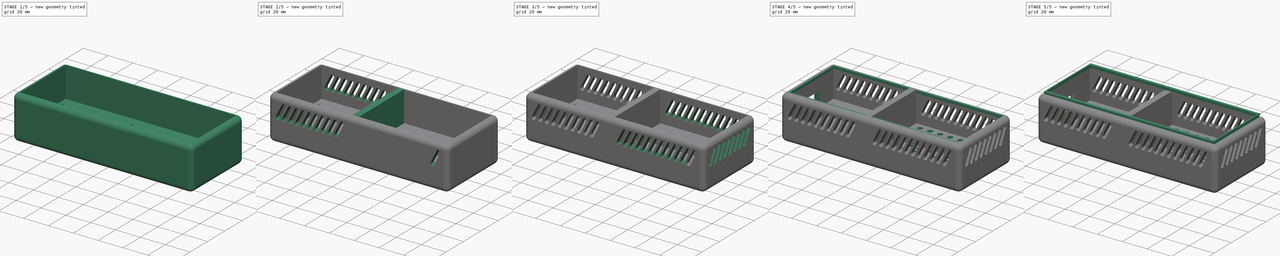
[diagram: build sequence overview — one tinted view per stage of 5, left to right]
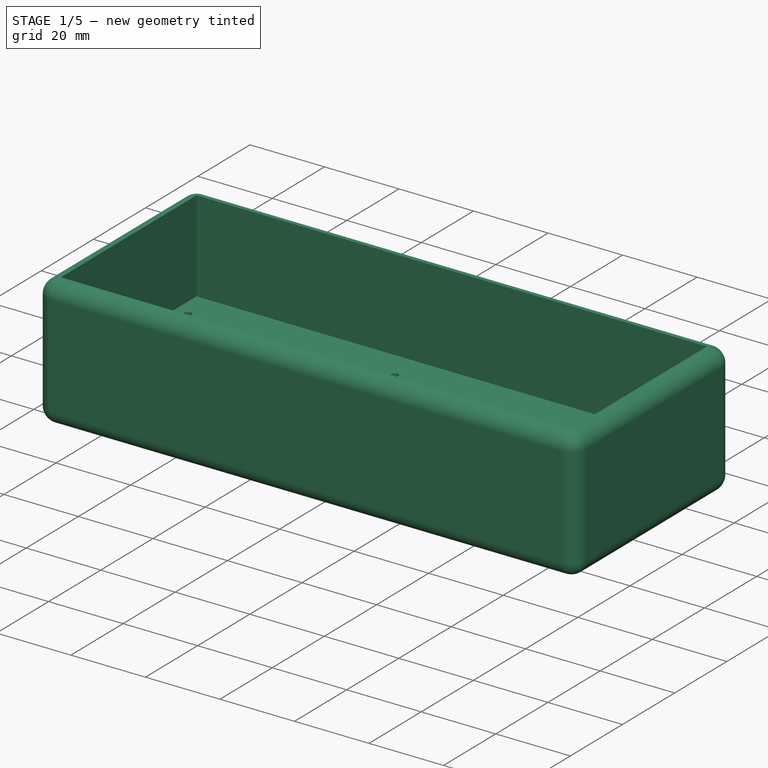
[diagram: stage 1 of 5 — iso view after this stage's code; geometry added in this stage tinted green]
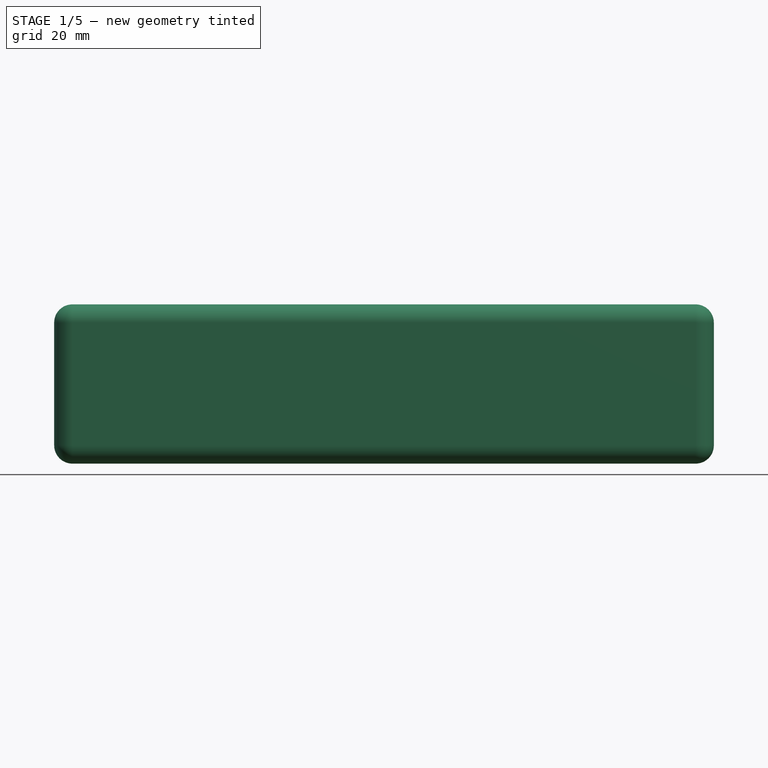
[diagram: stage 1 of 5 — front view after this stage's code; geometry added in this stage tinted green]
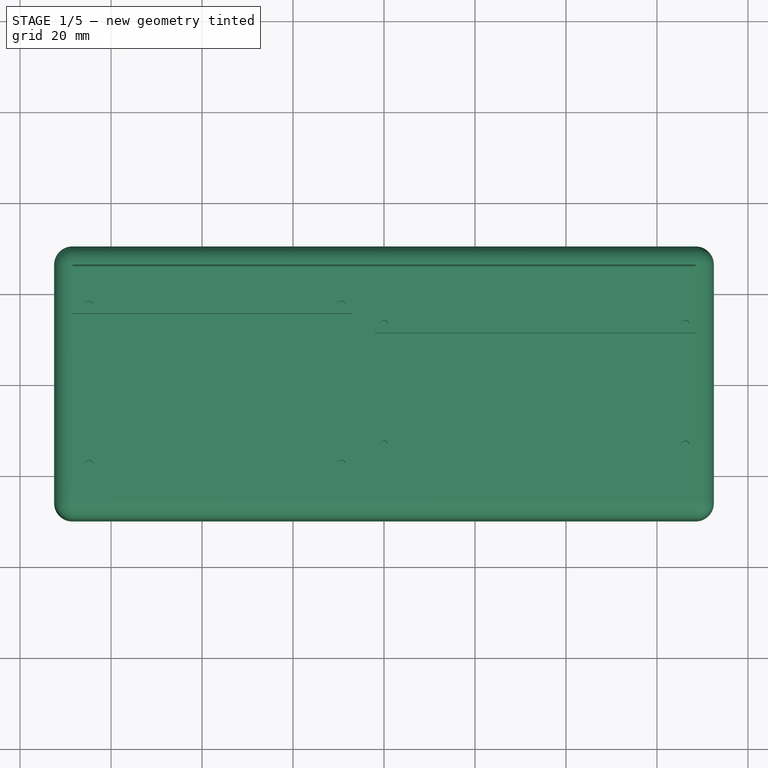
[diagram: stage 1 of 5 — top view after this stage's code; geometry added in this stage tinted green]
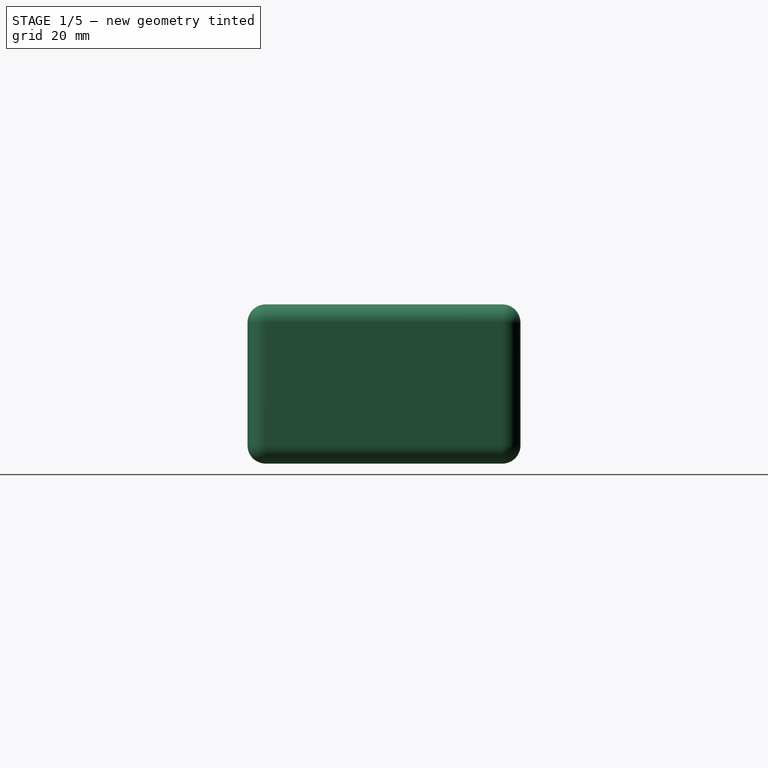
[diagram: stage 1 of 5 — right view after this stage's code; geometry added in this stage tinted green]
FCSTD DOCUMENT  (FreeCAD 0.21R33771 (Git))
Label: ESP_CASE_CHAMBERS
License: All rights reserved
LicenseURL: https://en.wikipedia.org/wiki/All_rights_reserved
objects: Sketcher::SketchObject×18, PartDesign::Pad×9, PartDesign::Pocket×8, PartDesign::LinearPattern×4, PartDesign::Fillet×1, PartDesign::Body×1
note: 59 computed .brp shape members not serialized (recipe doc carries the construction recipe); baked Part::Feature solids carry a one-line shape summary decoded from their .brp

FEATURE [Sketcher::SketchObject] Sketch
  FullyConstrained = true
  MapMode = 5
  Support = -> [XY_Plane]
  sketch-geometry (7):
    g0: LineSegment StartX=-72.5 StartY=30 StartZ=0 EndX=72.5 EndY=30 EndZ=0
    g1: LineSegment StartX=72.5 StartY=30 StartZ=0 EndX=72.5 EndY=-30 EndZ=0
    g2: LineSegment StartX=72.5 StartY=-30 StartZ=0 EndX=-72.5 EndY=-30 EndZ=0
    g3: LineSegment StartX=-72.5 StartY=-30 StartZ=0 EndX=-72.5 EndY=30 EndZ=0
    g4: LineSegment StartX=0 StartY=0 StartZ=0 EndX=72.5 EndY=30 EndZ=0
    g5: LineSegment StartX=0 StartY=0 StartZ=0 EndX=-72.5 EndY=-30 EndZ=0
    g6: LineSegment StartX=0 StartY=0 StartZ=0 EndX=-72.5 EndY=30 EndZ=0
  constraints (18):
    c: Coincident(g0,g1)
    c: Coincident(g1,g2)
    c: Coincident(g2,g3)
    c: Coincident(g3,g0)
    c: Horizontal(g0)
    c: Horizontal(g2)
    c: Vertical(g1)
    c: Vertical(g3)
    c: Distance(g0) = 145
    c: Distance(g1) = 60
    c: Coincident(g4,g-1)
    c: Coincident(g4,g0)
    c: Coincident(g5,g4)
    c: Coincident(g5,g2)
    c: Coincident(g6,g4)
    c: Coincident(g6,g0)
    c: Equal(g6,g5)
    c: Equal(g4,g6)
FEATURE [PartDesign::Pad] Pad
  Direction = (0,0,1)
  Length = 35
  Length2 = 10
  Profile = -> Sketch
  ReferenceAxis = -> Sketch [N_Axis]
  Type = 0
FEATURE [PartDesign::Fillet] Fillet
  Base = -> Pad [Edge1,Edge2,Edge3,Edge4,Edge5,Edge6,Edge7,Edge8,Edge9,Edge10,Edge11,Edge12]
  BaseFeature = -> Pad
  Radius = 4
  SupportTransform = false
  UseAllEdges = true
FEATURE [Sketcher::SketchObject] Sketch001
  ExternalGeometry = -> [Fillet]
  FullyConstrained = true
  MapMode = 5
  Placement = pos=(0,0,35) rot=(0,0,1;0rad)
  Support = -> [Fillet]
  sketch-geometry (4):
    g0: LineSegment StartX=-68.5 StartY=26 StartZ=0 EndX=68.5 EndY=26 EndZ=0
    g1: LineSegment StartX=68.5 StartY=26 StartZ=0 EndX=68.5 EndY=-26 EndZ=0
    g2: LineSegment StartX=68.5 StartY=-26 StartZ=0 EndX=-68.5 EndY=-26 EndZ=0
    g3: LineSegment StartX=-68.5 StartY=-26 StartZ=0 EndX=-68.5 EndY=26 EndZ=0
  constraints (10):
    c: Coincident(g0,g1)
    c: Coincident(g1,g2)
    c: Coincident(g2,g3)
    c: Coincident(g3,g0)
    c: Horizontal(g0)
    c: Horizontal(g2)
    c: Vertical(g1)
    c: Vertical(g3)
    c: Coincident(g0,g-4)
    c: Coincident(g1,g-6)
FEATURE [PartDesign::Pocket] Pocket
  BaseFeature = -> Fillet
  Direction = (0,0,-1)
  Length = 24.5
  Length2 = 5
  Profile = -> Sketch001
  ReferenceAxis = -> Sketch001 [N_Axis]
  Type = 0
FEATURE [Sketcher::SketchObject] Sketch002
  ExternalGeometry = -> [Pocket]
  FullyConstrained = true
  MapMode = 5
  Placement = pos=(0,0,10.5) rot=(0,0,1;0rad)
  Support = -> [Pocket]
  sketch-geometry (36):
    g0: LineSegment StartX=-68.5 StartY=15.65 StartZ=0 EndX=-7 EndY=15.65 EndZ=0
    g1: LineSegment StartX=-7 StartY=-15.65 StartZ=0 EndX=-68.5 EndY=-15.65 EndZ=0
    g2: LineSegment StartX=-68.5 StartY=-15.65 StartZ=0 EndX=-68.5 EndY=15.65 EndZ=0
    g3: LineSegment StartX=-68.5 StartY=-15.65 StartZ=0 EndX=0 EndY=0 EndZ=0
    g4: LineSegment StartX=-68.5 StartY=15.65 StartZ=0 EndX=0 EndY=0 EndZ=0
    g5: LineSegment StartX=0 StartY=0 StartZ=0 EndX=0 EndY=17.4 EndZ=0
    g6: LineSegment StartX=0 StartY=0 StartZ=0 EndX=0 EndY=-17.4 EndZ=0
    g7: LineSegment StartX=-64.85 StartY=17.5 StartZ=0 EndX=-9.35 EndY=17.5 EndZ=0
    g8: Circle CenterX=-9.35 CenterY=17.5 CenterZ=0 NormalX=0 NormalY=0 NormalZ=1 AngleXU=0 Radius=0.94
    g9: Circle CenterX=-64.85 CenterY=17.5 CenterZ=0 NormalX=0 NormalY=0 NormalZ=1 AngleXU=0 Radius=0.94
    g10: LineSegment StartX=-64.85 StartY=17.5 StartZ=0 EndX=-68.5 EndY=17.5 EndZ=0
    g11: LineSegment StartX=-64.85 StartY=17.5 StartZ=0 EndX=-64.85 EndY=-17.5 EndZ=0
    g12: LineSegment StartX=-64.85 StartY=-17.5 StartZ=0 EndX=-9.35 EndY=-17.5 EndZ=0
    g13: Circle CenterX=-9.35 CenterY=-17.5 CenterZ=0 NormalX=0 NormalY=0 NormalZ=1 AngleXU=0 Radius=0.94
    g14: Circle CenterX=-64.85 CenterY=-17.5 CenterZ=0 NormalX=0 NormalY=0 NormalZ=1 AngleXU=0 Radius=0.94
    g15: LineSegment StartX=-64.85 StartY=17.5 StartZ=0 EndX=0 EndY=0 EndZ=0
    g16: LineSegment StartX=0 StartY=0 StartZ=0 EndX=-64.85 EndY=-17.5 EndZ=0
    g17: LineSegment StartX=66.2 StartY=13.25 StartZ=0 EndX=66.2 EndY=-13.25 EndZ=0
    g18: LineSegment StartX=0 StartY=0 StartZ=0 EndX=66.2 EndY=13.25 EndZ=0
    g19: LineSegment StartX=66.2 StartY=-13.25 StartZ=0 EndX=0 EndY=0 EndZ=0
    g20: LineSegment StartX=66.2 StartY=13.25 StartZ=0 EndX=0 EndY=13.25 EndZ=0
    g21: LineSegment StartX=68.5 StartY=11.4 StartZ=0 EndX=-2 EndY=11.4 EndZ=0
    g22: LineSegment StartX=-2 StartY=11.4 StartZ=0 EndX=-2 EndY=-11.4 EndZ=0
    g23: LineSegment StartX=-2 StartY=-11.4 StartZ=0 EndX=68.5 EndY=-11.4 EndZ=0
    g24: LineSegment StartX=68.5 StartY=-11.4 StartZ=0 EndX=68.5 EndY=11.4 EndZ=0
    g25: LineSegment StartX=68.5 StartY=11.4 StartZ=0 EndX=0 EndY=0 EndZ=0
    g26: LineSegment StartX=0 StartY=0 StartZ=0 EndX=68.5 EndY=-11.4 EndZ=0
    g27: Circle CenterX=0 CenterY=13.25 CenterZ=0 NormalX=0 NormalY=0 NormalZ=1 AngleXU=0 Radius=0.94
    g28: Circle CenterX=66.2 CenterY=13.25 CenterZ=0 NormalX=0 NormalY=0 NormalZ=1 AngleXU=0 Radius=0.94
    g29: Circle CenterX=66.2 CenterY=-13.25 CenterZ=0 NormalX=0 NormalY=0 NormalZ=1 AngleXU=0 Radius=0.94
    g30: LineSegment StartX=66.2 StartY=-13.25 StartZ=0 EndX=0 EndY=-13.25 EndZ=0
    g31: Circle CenterX=0 CenterY=-13.25 CenterZ=0 NormalX=0 NormalY=0 NormalZ=1 AngleXU=0 Radius=0.94
    g32: LineSegment StartX=-2 StartY=11.4 StartZ=0 EndX=-2 EndY=13.25 EndZ=0
    g33: LineSegment StartX=-2 StartY=13.25 StartZ=0 EndX=0 EndY=13.25 EndZ=0
    g34: LineSegment StartX=-7 StartY=-7.75442 StartZ=0 EndX=-2 EndY=-7.75442 EndZ=0
    g35: LineSegment StartX=-7 StartY=15.65 StartZ=0 EndX=-7 EndY=-15.65 EndZ=0
  constraints (94):
    c: Coincident(g1,g2)
    c: Coincident(g2,g0)
    c: Horizontal(g0)
    c: Horizontal(g1)
    c: Vertical(g2)
    c: Distance(g0) = 61.5
    c: Distance(g2) = 31.3
    c: Coincident(g3,g1)
    c: Coincident(g3,g-1)
    c: Coincident(g4,g0)
    c: Coincident(g4,g3)
    c: Equal(g4,g3)
    c: PointOnObject(g0,g-4)
    c: Coincident(g5,g3)
    c: PointOnObject(g5,g-2)
    c: Coincident(g6,g3)
    c: PointOnObject(g6,g-2)
    c: Equal(g5,g6)
    c: Distance(g5) = 17.4
    c: Horizontal(g7)
    c: Distance(g7) = 55.5
    c: Diameter(g8) = 1.88
    c: Equal(g9,g8)
    c: Coincident(g8,g7)
    c: Coincident(g7,g9)
    c: Coincident(g10,g9)
    c: PointOnObject(g10,g-4)
    c: Horizontal(g10)
    c: Distance(g10) = 3.65
    c: Coincident(g11,g9)
    c: Vertical(g11)
    c: Coincident(g12,g11)
    c: Horizontal(g12)
    c: Equal(g9,g14)
    c: Equal(g8,g13)
    c: Coincident(g13,g12)
    c: Coincident(g14,g11)
    c: Equal(g12,g7)
    c: Distance(g11) = 35
    c: Coincident(g15,g9)
    c: Coincident(g15,g3)
    c: Coincident(g16,g3)
    c: Coincident(g16,g14)
    c: Equal(g15,g16)
    c: Vertical(g17)
    c: Distance(g17) = 26.5
    c: Coincident(g18,g3)
    c: Coincident(g18,g17)
    c: Coincident(g19,g17)
    c: Coincident(g19,g3)
    c: Equal(g18,g19)
    c: Coincident(g20,g17)
    c: Horizontal(g20)
    c: Coincident(g21,g22)
    c: Coincident(g22,g23)
    c: Coincident(g23,g24)
    c: Coincident(g24,g21)
    c: Horizontal(g21)
    c: Horizontal(g23)
    c: Vertical(g22)
    c: Vertical(g24)
    c: PointOnObject(g21,g-6)
    c: Coincident(g25,g21)
    c: Coincident(g25,g3)
    c: Coincident(g26,g3)
    c: Coincident(g26,g23)
    c: Equal(g25,g26)
    c: Distance(g22) = 22.8
    c: Coincident(g27,g20)
    c: Coincident(g28,g17)
    c: Coincident(g29,g17)
    c: Coincident(g30,g29)
    c: Horizontal(g30)
    c: Coincident(g31,g30)
    c: Equal(g20,g30)
    c: Equal(g8,g27)
    c: Equal(g8,g28)
    c: Equal(g8,g29)
    c: Equal(g8,g31)
    c: Distance(g20) = 66.2
    c: Coincident(g32,g21)
    c: Vertical(g32)
    c: Coincident(g33,g32)
    c: Coincident(g33,g27)
    c: Horizontal(g33)
    c: Distance(g33) = 2
    c: PointOnObject(g34,g22)
    c: Horizontal(g34)
    c: Distance(g34) = 5
    c: Coincident(g35,g0)
    c: Coincident(g35,g1)
    c: Vertical(g35)
    c: PointOnObject(g34,g35)
    c: Block(g34)
FEATURE [PartDesign::Pocket] Pocket001
  BaseFeature = -> Pocket
  Direction = (0,0,-1)
  Length = 8
  Length2 = 5
  Profile = -> Sketch002
  ReferenceAxis = -> Sketch002 [N_Axis]
  Type = 0
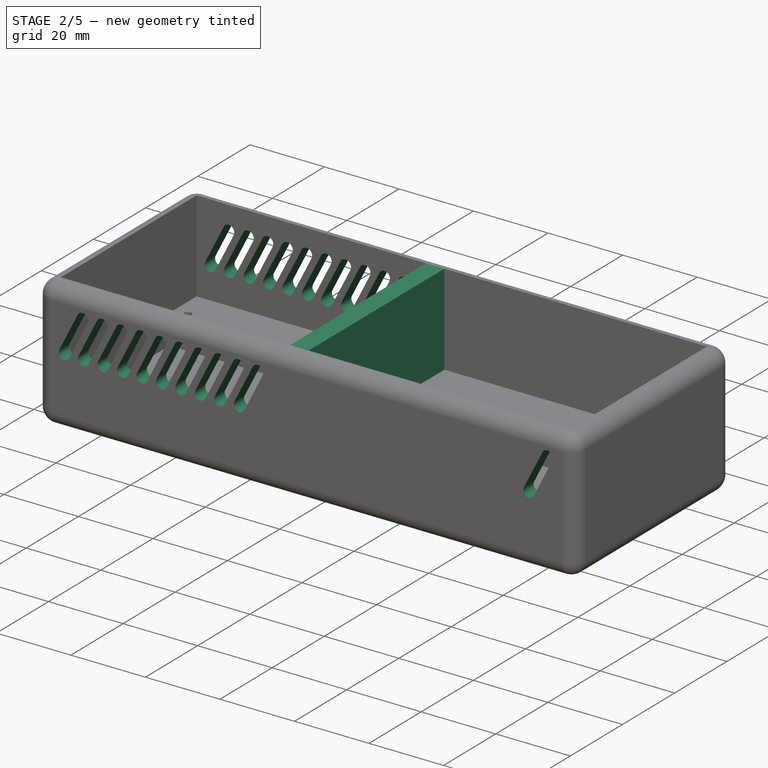
[diagram: stage 2 of 5 — iso view after this stage's code; geometry added in this stage tinted green]
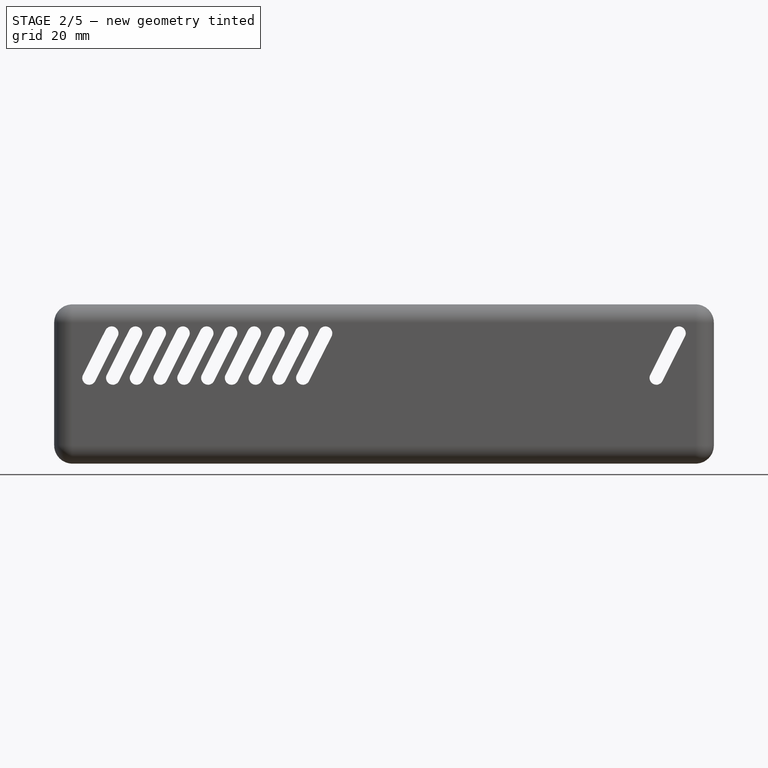
[diagram: stage 2 of 5 — front view after this stage's code; geometry added in this stage tinted green]
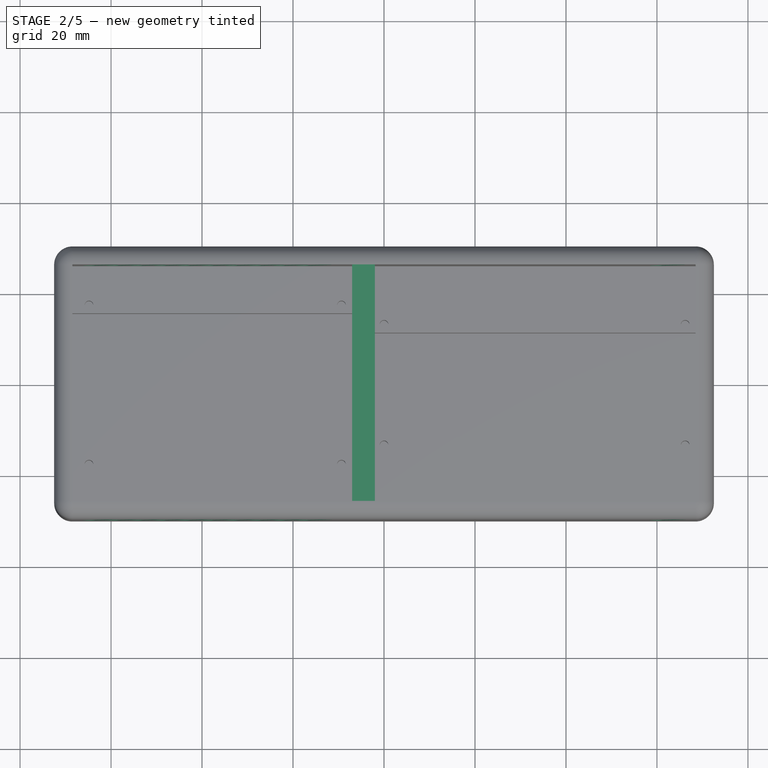
[diagram: stage 2 of 5 — top view after this stage's code; geometry added in this stage tinted green]
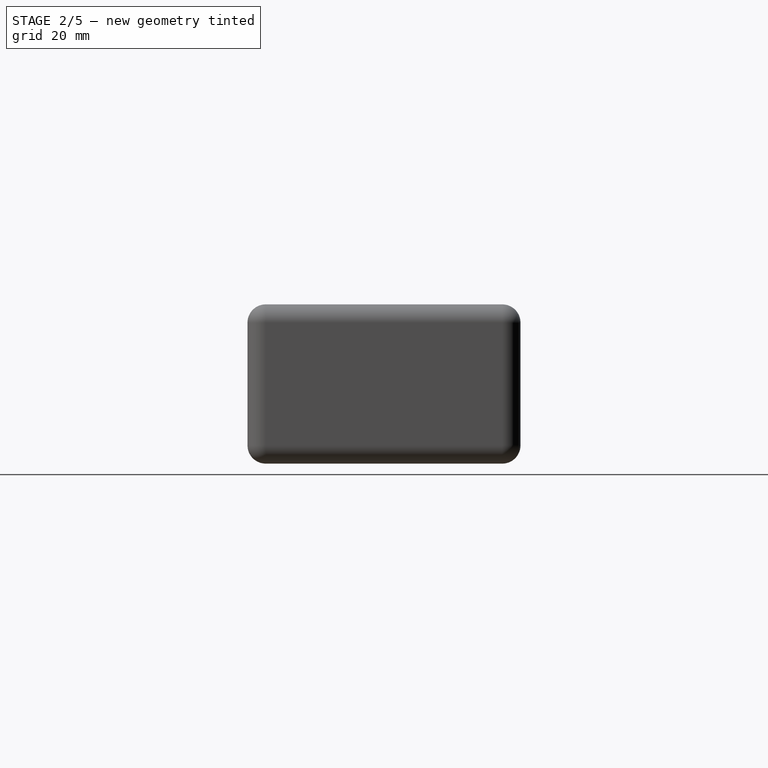
[diagram: stage 2 of 5 — right view after this stage's code; geometry added in this stage tinted green]
FEATURE [Sketcher::SketchObject] Sketch003
  ExternalGeometry = -> [Pocket001]
  FullyConstrained = true
  MapMode = 5
  Placement = pos=(0,0,10.5) rot=(0,0,1;0rad)
  Support = -> [Pocket001]
  sketch-geometry (6):
    g0: LineSegment StartX=-7 StartY=15.65 StartZ=0 EndX=-7 EndY=26 EndZ=0
    g1: LineSegment StartX=-7 StartY=15.65 StartZ=0 EndX=-7 EndY=-26 EndZ=0
    g2: LineSegment StartX=-2 StartY=-11.4 StartZ=0 EndX=-2 EndY=-26 EndZ=0
    g3: LineSegment StartX=-7 StartY=-26 StartZ=0 EndX=-2 EndY=-26 EndZ=0
    g4: LineSegment StartX=-2 StartY=-11.4 StartZ=0 EndX=-2 EndY=26 EndZ=0
    g5: LineSegment StartX=-7 StartY=26 StartZ=0 EndX=-2 EndY=26 EndZ=0
  constraints (16):
    c: Coincident(g0,g-3)
    c: PointOnObject(g0,g-5)
    c: Vertical(g0)
    c: Coincident(g1,g0)
    c: PointOnObject(g1,g-6)
    c: Vertical(g1)
    c: Coincident(g2,g-4)
    c: Vertical(g2)
    c: Coincident(g3,g1)
    c: Coincident(g3,g2)
    c: Horizontal(g3)
    c: Coincident(g4,g2)
    c: PointOnObject(g4,g-5)
    c: Vertical(g4)
    c: Coincident(g5,g0)
    c: Coincident(g5,g4)
FEATURE [PartDesign::Pad] Pad001
  BaseFeature = -> Pocket001
  Direction = (0,0,1)
  Length = 24.5
  Length2 = 10
  Profile = -> Sketch003
  ReferenceAxis = -> Sketch003 [N_Axis]
  Type = 0
FEATURE [Sketcher::SketchObject] Sketch004
  ExternalGeometry = -> [Pad001]
  FullyConstrained = true
  MapMode = 5
  Placement = pos=(-2,0,0) rot=(0.57735,0.57735,0.57735;2.0944rad)
  Support = -> [Pad001]
  sketch-geometry (4):
    g0: LineSegment StartX=-11.4 StartY=10.5 StartZ=0 EndX=0 EndY=6.5 EndZ=0
    g1: LineSegment StartX=11.4 StartY=10.5 StartZ=0 EndX=0 EndY=6.5 EndZ=0
    g2: LineSegment StartX=0 StartY=6.5 StartZ=0 EndX=11.4 EndY=2.5 EndZ=0
    g3: Circle CenterX=0 CenterY=6.5 CenterZ=0 NormalX=0 NormalY=0 NormalZ=1 AngleXU=0 Radius=3.5
  constraints (9):
    c: Coincident(g0,g-5)
    c: Coincident(g1,g-6)
    c: Coincident(g1,g0)
    c: Coincident(g2,g0)
    c: Coincident(g2,g-6)
    c: Equal(g2,g1)
    c: Equal(g1,g0)
    c: Coincident(g3,g0)
    c: Diameter(g3) = 7
FEATURE [PartDesign::Pocket] Pocket002
  BaseFeature = -> Pad001
  Direction = (-1,0,0)
  Length = 5
  Length2 = 5
  Profile = -> Sketch004
  ReferenceAxis = -> Sketch004 [N_Axis]
  Type = 0
FEATURE [Sketcher::SketchObject] Sketch005
  ExternalGeometry = -> [Pocket002]
  FullyConstrained = true
  MapMode = 5
  Placement = pos=(0,-30,0) rot=(1,0,0;1.5708rad)
  Support = -> [Pocket002]
  sketch-geometry (16):
    g0: LineSegment StartX=-61.21 StartY=29.3362 StartZ=0 EndX=-66.1638 EndY=19.5148 EndZ=0
    g1: LineSegment StartX=-58.5315 StartY=27.9852 StartZ=0 EndX=-63.4852 EndY=18.1638 EndZ=0
    g2: ArcOfCircle CenterX=-59.8707 CenterY=28.6607 CenterZ=0 NormalX=0 NormalY=0 NormalZ=1 AngleXU=0 Radius=1.5 StartAngle=5.81604 EndAngle=8.95763
    g3: ArcOfCircle CenterX=-64.8245 CenterY=18.8393 CenterZ=0 NormalX=0 NormalY=0 NormalZ=1 AngleXU=0 Radius=1.5 StartAngle=2.67445 EndAngle=5.81604
    g4: LineSegment StartX=-61.21 StartY=29.3362 StartZ=0 EndX=-59.1952 EndY=30 EndZ=0
    g5: LineSegment StartX=-59.1952 StartY=30 StartZ=0 EndX=-58.5315 EndY=27.9852 EndZ=0
    g6: LineSegment StartX=-58.5315 StartY=27.9852 StartZ=0 EndX=-66.1638 EndY=19.5148 EndZ=0
    g7: LineSegment StartX=-66.1638 StartY=19.5148 StartZ=0 EndX=-65.5 EndY=17.5 EndZ=0
    g8: LineSegment StartX=-65.5 StartY=17.5 StartZ=0 EndX=-63.4852 EndY=18.1638 EndZ=0
    g9: LineSegment StartX=-61.21 StartY=29.3362 StartZ=0 EndX=-63.4852 EndY=18.1638 EndZ=0
    g10: LineSegment StartX=-61.21 StartY=29.3362 StartZ=0 EndX=-58.5315 EndY=27.9852 EndZ=0
    g11: LineSegment StartX=-66.1638 StartY=19.5148 StartZ=0 EndX=-63.4852 EndY=18.1638 EndZ=0
    g12: LineSegment StartX=-59.1952 StartY=30 StartZ=0 EndX=-65.5 EndY=30 EndZ=0
    g13: LineSegment StartX=-65.5 StartY=30 StartZ=0 EndX=-65.5 EndY=17.5 EndZ=0
    g14: LineSegment StartX=-59.1952 StartY=30 StartZ=0 EndX=-59.1952 EndY=31 EndZ=0
    g15: LineSegment StartX=-65.5 StartY=17.5 StartZ=0 EndX=-68.5 EndY=17.5 EndZ=0
  constraints (43):
    c: Coincident(g2,g0)
    c: Coincident(g2,g1)
    c: Coincident(g3,g1)
    c: Coincident(g3,g0)
    c: Coincident(g4,g0)
    c: PointOnObject(g4,g2)
    c: Coincident(g5,g4)
    c: Coincident(g5,g1)
    c: Coincident(g6,g1)
    c: Coincident(g6,g0)
    c: Coincident(g7,g0)
    c: PointOnObject(g7,g3)
    c: Coincident(g8,g7)
    c: Coincident(g8,g1)
    c: Equal(g4,g5)
    c: Equal(g8,g7)
    c: Coincident(g9,g0)
    c: Coincident(g9,g1)
    c: Equal(g9,g6)
    c: Coincident(g10,g0)
    c: Coincident(g10,g1)
    c: Coincident(g11,g0)
    c: Coincident(g11,g1)
    c: Equal(g11,g10)
    c: PointOnObject(g2,g10)
    c: PointOnObject(g3,g11)
    c: Equal(g1,g0)
    c: Distance(g10) = 3
    c: Distance(g4,g7) = 14
    c: Coincident(g12,g4)
    c: Horizontal(g12)
    c: Coincident(g13,g12)
    c: Coincident(g13,g7)
    c: Vertical(g13)
    c: Distance(g13) = 12.5
    c: Coincident(g14,g4)
    c: PointOnObject(g14,g-3)
    c: Distance(g14) = 1
    c: Coincident(g15,g7)
    c: PointOnObject(g15,g-4)
    c: Horizontal(g15)
    c: Distance(g15) = 3
    c: Vertical(g14)
FEATURE [PartDesign::Pocket] Pocket003
  BaseFeature = -> Pocket002
  Direction = (0,1,-2e-16)
  Length = 5
  Length2 = 5
  Profile = -> Sketch005
  ReferenceAxis = -> Sketch005 [N_Axis]
  Type = 1
FEATURE [PartDesign::LinearPattern] LinearPattern
  BaseFeature = -> Pocket003
  Direction = -> Sketch005 [H_Axis]
  Length = 47
  Occurrences = 10
  Originals = -> [Pocket003]
FEATURE [Sketcher::SketchObject] Sketch006
  ExternalGeometry = -> [LinearPattern]
  FullyConstrained = true
  MapMode = 5
  Placement = pos=(0,-30,0) rot=(1,0,0;1.5708rad)
  Support = -> [LinearPattern]
  sketch-geometry (16):
    g0: LineSegment StartX=63.4852 StartY=29.3362 StartZ=0 EndX=58.5315 EndY=19.5148 EndZ=0
    g1: LineSegment StartX=66.1638 StartY=27.9852 StartZ=0 EndX=61.21 EndY=18.1638 EndZ=0
    g2: ArcOfCircle CenterX=64.8245 CenterY=28.6607 CenterZ=0 NormalX=0 NormalY=0 NormalZ=1 AngleXU=0 Radius=1.5 StartAngle=5.81604 EndAngle=8.95763
    g3: ArcOfCircle CenterX=59.8707 CenterY=18.8393 CenterZ=0 NormalX=0 NormalY=0 NormalZ=1 AngleXU=0 Radius=1.5 StartAngle=2.67445 EndAngle=5.81604
    g4: LineSegment StartX=63.4852 StartY=29.3362 StartZ=0 EndX=65.5 EndY=30 EndZ=0
    g5: LineSegment StartX=65.5 StartY=30 StartZ=0 EndX=66.1638 EndY=27.9852 EndZ=0
    g6: LineSegment StartX=66.1638 StartY=27.9852 StartZ=0 EndX=58.5315 EndY=19.5148 EndZ=0
    g7: LineSegment StartX=58.5315 StartY=19.5148 StartZ=0 EndX=59.1952 EndY=17.5 EndZ=0
    g8: LineSegment StartX=59.1952 StartY=17.5 StartZ=0 EndX=61.21 EndY=18.1638 EndZ=0
    g9: LineSegment StartX=61.21 StartY=18.1638 StartZ=0 EndX=58.5315 EndY=19.5148 EndZ=0
    g10: LineSegment StartX=63.4852 StartY=29.3362 StartZ=0 EndX=66.1638 EndY=27.9852 EndZ=0
    g11: LineSegment StartX=63.4852 StartY=29.3362 StartZ=0 EndX=61.21 EndY=18.1638 EndZ=0
    g12: LineSegment StartX=65.5 StartY=30 StartZ=0 EndX=65.5 EndY=31 EndZ=0
    g13: LineSegment StartX=65.5 StartY=30 StartZ=0 EndX=59.1952 EndY=30 EndZ=0
    g14: LineSegment StartX=59.1952 StartY=30 StartZ=0 EndX=59.1952 EndY=17.5 EndZ=0
    g15: LineSegment StartX=65.5 StartY=30 StartZ=0 EndX=68.5 EndY=30 EndZ=0
  constraints (43):
    c: Coincident(g2,g0)
    c: Coincident(g2,g1)
    c: Coincident(g3,g0)
    c: Coincident(g3,g1)
    c: Coincident(g4,g0)
    c: PointOnObject(g4,g2)
    c: Coincident(g5,g4)
    c: Coincident(g5,g1)
    c: Coincident(g6,g1)
    c: Coincident(g6,g0)
    c: Coincident(g7,g0)
    c: PointOnObject(g7,g3)
    c: Coincident(g8,g7)
    c: Coincident(g8,g1)
    c: Coincident(g9,g1)
    c: Coincident(g9,g0)
    c: Coincident(g10,g0)
    c: Coincident(g10,g1)
    c: Coincident(g11,g0)
    c: Coincident(g11,g1)
    c: PointOnObject(g2,g10)
    c: PointOnObject(g3,g9)
    c: Distance(g10) = 3
    c: Equal(g4,g5)
    c: Equal(g10,g9)
    c: Equal(g7,g8)
    c: Equal(g6,g11)
    c: Equal(g0,g1)
    c: Distance(g4,g7) = 14
    c: Coincident(g12,g4)
    c: PointOnObject(g12,g-3)
    c: Vertical(g12)
    c: Coincident(g13,g4)
    c: Horizontal(g13)
    c: Coincident(g14,g13)
    c: Coincident(g14,g7)
    c: Vertical(g14)
    c: Distance(g14) = 12.5
    c: Distance(g12) = 1
    c: Coincident(g15,g4)
    c: PointOnObject(g15,g-5)
    c: Horizontal(g15)
    c: Distance(g15) = 3
FEATURE [PartDesign::Pocket] Pocket004
  BaseFeature = -> LinearPattern
  Direction = (0,1,-2e-16)
  Length = 5
  Length2 = 5
  Profile = -> Sketch006
  ReferenceAxis = -> Sketch006 [N_Axis]
  Type = 1
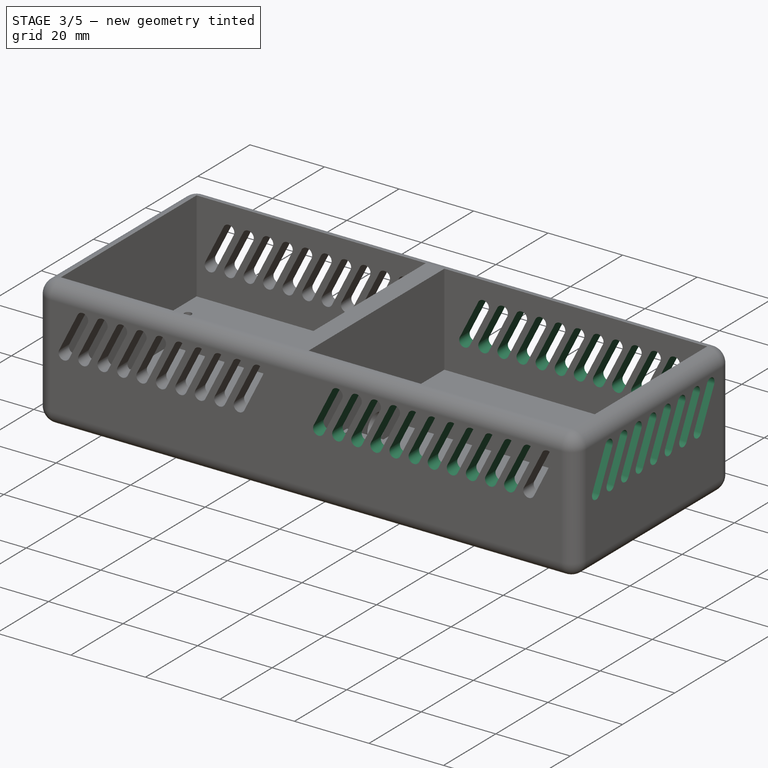
[diagram: stage 3 of 5 — iso view after this stage's code; geometry added in this stage tinted green]
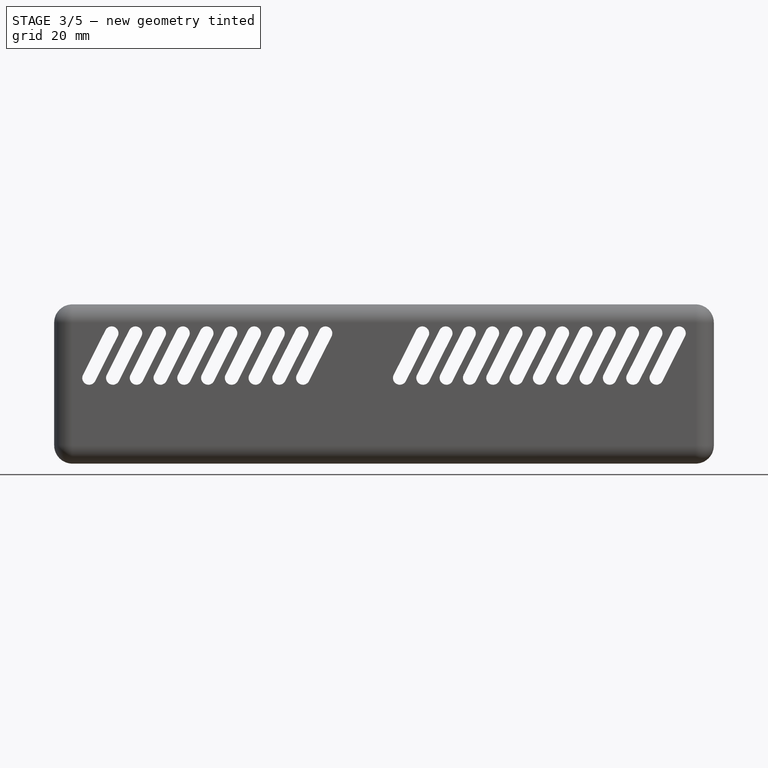
[diagram: stage 3 of 5 — front view after this stage's code; geometry added in this stage tinted green]
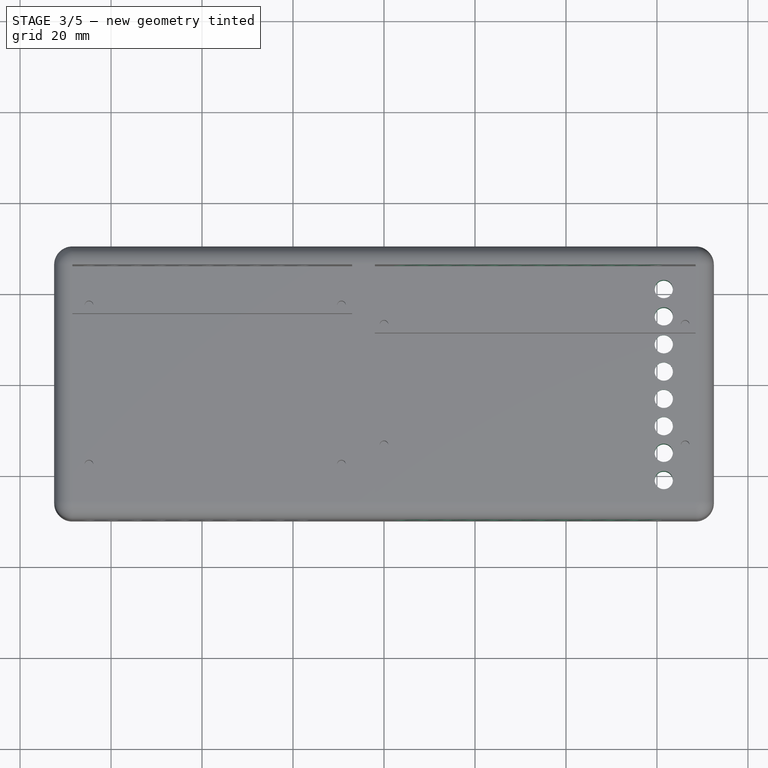
[diagram: stage 3 of 5 — top view after this stage's code; geometry added in this stage tinted green]
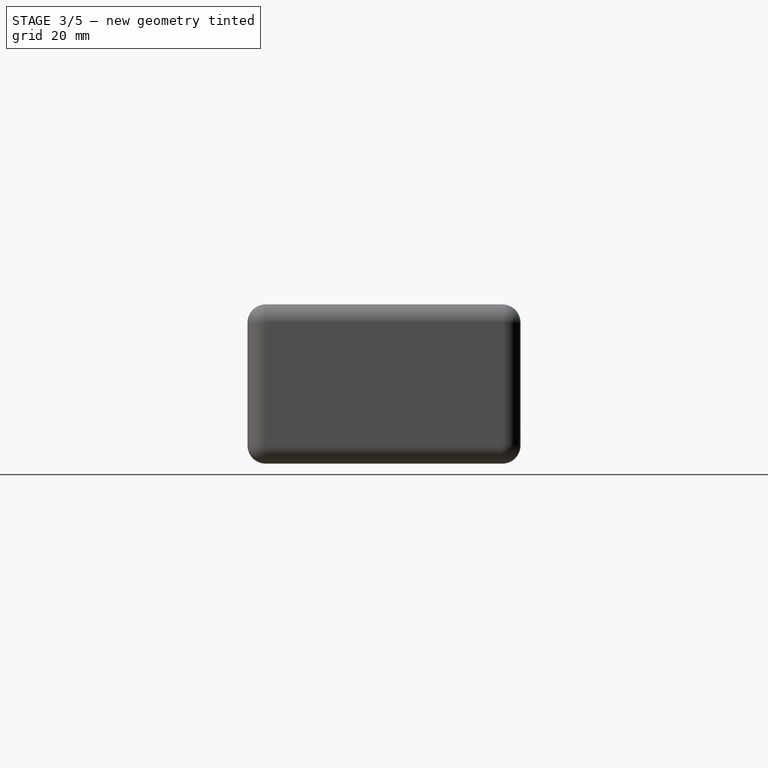
[diagram: stage 3 of 5 — right view after this stage's code; geometry added in this stage tinted green]
FEATURE [PartDesign::LinearPattern] LinearPattern001
  BaseFeature = -> Pocket004
  Direction = -> Sketch006 [H_Axis]
  Length = 56.4
  Occurrences = 12
  Originals = -> [Pocket004]
  Reversed = true
FEATURE [Sketcher::SketchObject] Sketch007
  ExternalGeometry = -> [LinearPattern001]
  FullyConstrained = true
  MapMode = 5
  Placement = pos=(72.5,0,0) rot=(0.57735,0.57735,0.57735;2.0944rad)
  Support = -> [LinearPattern001]
  sketch-geometry (16):
    g0: LineSegment StartX=-18.71 StartY=29.3362 StartZ=0 EndX=-23.6638 EndY=19.5148 EndZ=0
    g1: LineSegment StartX=-16.0315 StartY=27.9852 StartZ=0 EndX=-20.9852 EndY=18.1638 EndZ=0
    g2: ArcOfCircle CenterX=-17.3707 CenterY=28.6607 CenterZ=0 NormalX=0 NormalY=0 NormalZ=1 AngleXU=0 Radius=1.5 StartAngle=5.81604 EndAngle=8.95763
    g3: ArcOfCircle CenterX=-22.3245 CenterY=18.8393 CenterZ=0 NormalX=0 NormalY=0 NormalZ=1 AngleXU=0 Radius=1.5 StartAngle=2.67445 EndAngle=5.81604
    g4: LineSegment StartX=-18.71 StartY=29.3362 StartZ=0 EndX=-16.6952 EndY=30 EndZ=0
    g5: LineSegment StartX=-16.6952 StartY=30 StartZ=0 EndX=-16.0315 EndY=27.9852 EndZ=0
    g6: LineSegment StartX=-16.0315 StartY=27.9852 StartZ=0 EndX=-18.71 EndY=29.3362 EndZ=0
    g7: LineSegment StartX=-23.6638 StartY=19.5148 StartZ=0 EndX=-23 EndY=17.5 EndZ=0
    g8: LineSegment StartX=-23 StartY=17.5 StartZ=0 EndX=-20.9852 EndY=18.1638 EndZ=0
    g9: LineSegment StartX=-20.9852 StartY=18.1638 StartZ=0 EndX=-23.6638 EndY=19.5148 EndZ=0
    g10: LineSegment StartX=-18.71 StartY=29.3362 StartZ=0 EndX=-20.9852 EndY=18.1638 EndZ=0
    g11: LineSegment StartX=-23.6638 StartY=19.5148 StartZ=0 EndX=-16.0315 EndY=27.9852 EndZ=0
    g12: LineSegment StartX=-23 StartY=17.5 StartZ=0 EndX=-16.6952 EndY=17.5 EndZ=0
    g13: LineSegment StartX=-16.6952 StartY=30 StartZ=0 EndX=-16.6952 EndY=17.5 EndZ=0
    g14: LineSegment StartX=-16.6952 StartY=30 StartZ=0 EndX=-16.6952 EndY=31 EndZ=0
    g15: LineSegment StartX=-23 StartY=17.5 StartZ=0 EndX=-26 EndY=17.5 EndZ=0
  constraints (43):
    c: Coincident(g2,g0)
    c: Coincident(g2,g1)
    c: Coincident(g3,g0)
    c: Coincident(g3,g1)
    c: Coincident(g4,g0)
    c: PointOnObject(g4,g2)
    c: Coincident(g5,g4)
    c: Coincident(g5,g1)
    c: Coincident(g6,g1)
    c: Coincident(g6,g0)
    c: Coincident(g7,g0)
    c: PointOnObject(g7,g3)
    c: Coincident(g8,g7)
    c: Coincident(g8,g1)
    c: Coincident(g9,g1)
    c: Coincident(g9,g0)
    c: Coincident(g10,g0)
    c: Coincident(g10,g1)
    c: Coincident(g11,g0)
    c: Coincident(g11,g1)
    c: Equal(g0,g1)
    c: Equal(g10,g11)
    c: Equal(g4,g5)
    c: Equal(g7,g8)
    c: PointOnObject(g2,g6)
    c: PointOnObject(g3,g9)
    c: Equal(g6,g9)
    c: Distance(g6) = 3
    c: Distance(g4,g7) = 14
    c: Coincident(g12,g7)
    c: Horizontal(g12)
    c: Coincident(g13,g4)
    c: Coincident(g13,g12)
    c: Vertical(g13)
    c: Distance(g13) = 12.5
    c: Coincident(g14,g4)
    c: PointOnObject(g14,g-4)
    c: Vertical(g14)
    c: Distance(g14) = 1
    c: Coincident(g15,g7)
    c: PointOnObject(g15,g-3)
    c: Horizontal(g15)
    c: Distance(g15) = 3
FEATURE [PartDesign::Pocket] Pocket005
  BaseFeature = -> LinearPattern001
  Direction = (-1,0,0)
  Length = 5
  Length2 = 5
  Profile = -> Sketch007
  ReferenceAxis = -> Sketch007 [N_Axis]
  Type = 0
FEATURE [PartDesign::LinearPattern] LinearPattern002
  BaseFeature = -> Pocket005
  Direction = -> Y_Axis
  Length = 39
  Occurrences = 8
  Originals = -> [Pocket005]
FEATURE [Sketcher::SketchObject] Sketch008
  ExternalGeometry = -> [LinearPattern002]
  FullyConstrained = true
  MapMode = 5
  Placement = pos=(0,0,0) rot=(1,0,0;3.14159rad)
  Support = -> [LinearPattern002]
  sketch-geometry (18):
    g0: Circle CenterX=61.5 CenterY=21 CenterZ=0 NormalX=0 NormalY=0 NormalZ=1 AngleXU=0 Radius=2
    g1: Circle CenterX=61.5 CenterY=15 CenterZ=0 NormalX=0 NormalY=0 NormalZ=1 AngleXU=0 Radius=2
    g2: Circle CenterX=61.5 CenterY=9 CenterZ=0 NormalX=0 NormalY=0 NormalZ=1 AngleXU=0 Radius=2
    g3: Circle CenterX=61.5 CenterY=3 CenterZ=0 NormalX=0 NormalY=0 NormalZ=1 AngleXU=0 Radius=2
    g4: Circle CenterX=61.5 CenterY=-3 CenterZ=0 NormalX=0 NormalY=0 NormalZ=1 AngleXU=0 Radius=2
    g5: Circle CenterX=61.5 CenterY=-9 CenterZ=0 NormalX=0 NormalY=0 NormalZ=1 AngleXU=0 Radius=2
    g6: Circle CenterX=61.5 CenterY=-15 CenterZ=0 NormalX=0 NormalY=0 NormalZ=1 AngleXU=0 Radius=2
    g7: Circle CenterX=61.5 CenterY=-21 CenterZ=0 NormalX=0 NormalY=0 NormalZ=1 AngleXU=0 Radius=2
    g8: LineSegment StartX=61.5 StartY=21 StartZ=0 EndX=61.5 EndY=15 EndZ=0
    g9: LineSegment StartX=61.5 StartY=15 StartZ=0 EndX=61.5 EndY=9 EndZ=0
    g10: LineSegment StartX=61.5 StartY=9 StartZ=0 EndX=61.5 EndY=3 EndZ=0
    g11: LineSegment StartX=61.5 StartY=3 StartZ=0 EndX=61.5 EndY=-3 EndZ=0
    g12: LineSegment StartX=61.5 StartY=-3 StartZ=0 EndX=61.5 EndY=-9 EndZ=0
    g13: LineSegment StartX=61.5 StartY=-9 StartZ=0 EndX=61.5 EndY=-15 EndZ=0
    g14: LineSegment StartX=61.5 StartY=-15 StartZ=0 EndX=61.5 EndY=-21 EndZ=0
    g15: LineSegment StartX=61.5 StartY=21 StartZ=0 EndX=61.5 EndY=26 EndZ=0
    g16: LineSegment StartX=61.5 StartY=-21 StartZ=0 EndX=61.5 EndY=-26 EndZ=0
    g17: LineSegment StartX=61.5 StartY=21 StartZ=0 EndX=68.5 EndY=21 EndZ=0
  constraints (36):
    c: Equal(g0, g1-g7) x7
    c: Coincident(g8,g0)
    c: Coincident(g8,g1)
    c: Coincident(g9,g1)
    c: Coincident(g9,g2)
    c: Coincident(g10,g2)
    c: Coincident(g10,g3)
    c: Vertical(g10)
    c: Coincident(g11,g3)
    c: Coincident(g11,g4)
    c: Coincident(g12,g4)
    c: Coincident(g12,g5)
    c: Coincident(g13,g5)
    c: Coincident(g13,g6)
    c: Coincident(g14,g6)
    c: Coincident(g14,g7)
    c: Vertical(g14)
    c: Vertical(g8)
    c: Vertical(g9)
    c: Vertical(g11)
    c: Vertical(g12)
    c: Vertical(g13)
    c: Coincident(g15,g0)
    c: PointOnObject(g15,g-3)
    c: Vertical(g15)
    c: Coincident(g16,g7)
    c: PointOnObject(g16,g-5)
    c: Vertical(g16)
    c: Equal(g8, g9-g14) x6
    c: Equal(g16,g15)
    c: Distance(g15) = 5
    c: Diameter(g0) = 4
    c: Coincident(g17,g0)
    c: PointOnObject(g17,g-4)
    c: Horizontal(g17)
    c: Distance(g17) = 7
FEATURE [PartDesign::Pocket] Pocket006
  BaseFeature = -> LinearPattern002
  Direction = (0,0,1)
  Length = 5
  Length2 = 5
  Profile = -> Sketch008
  ReferenceAxis = -> Sketch008 [N_Axis]
  Type = 1
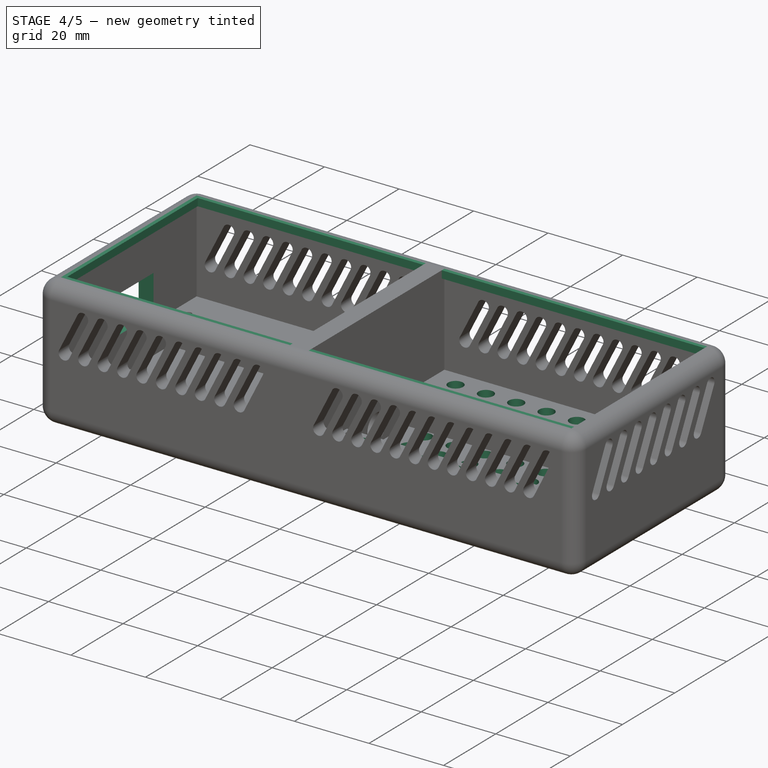
[diagram: stage 4 of 5 — iso view after this stage's code; geometry added in this stage tinted green]
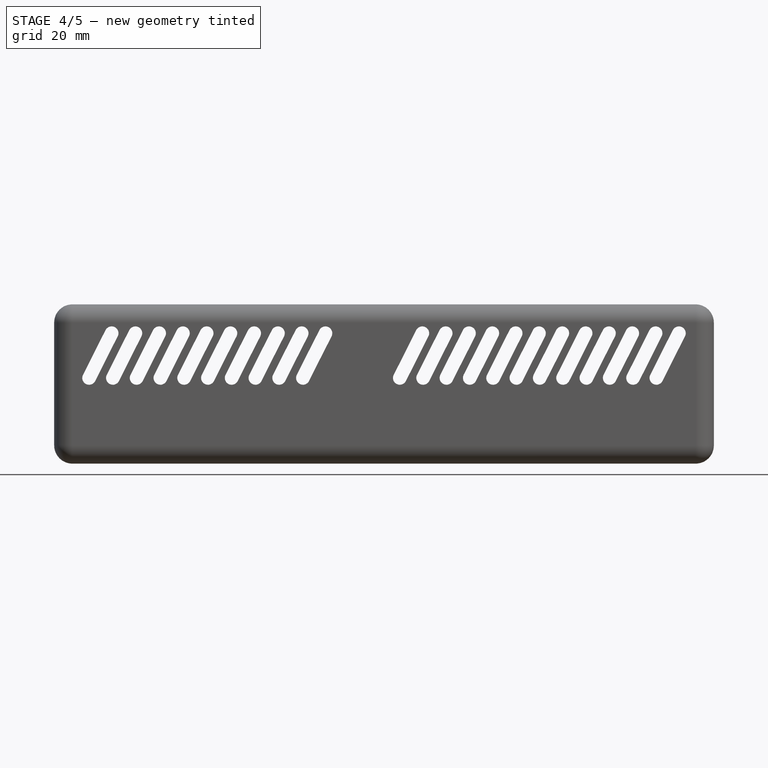
[diagram: stage 4 of 5 — front view after this stage's code; geometry added in this stage tinted green]
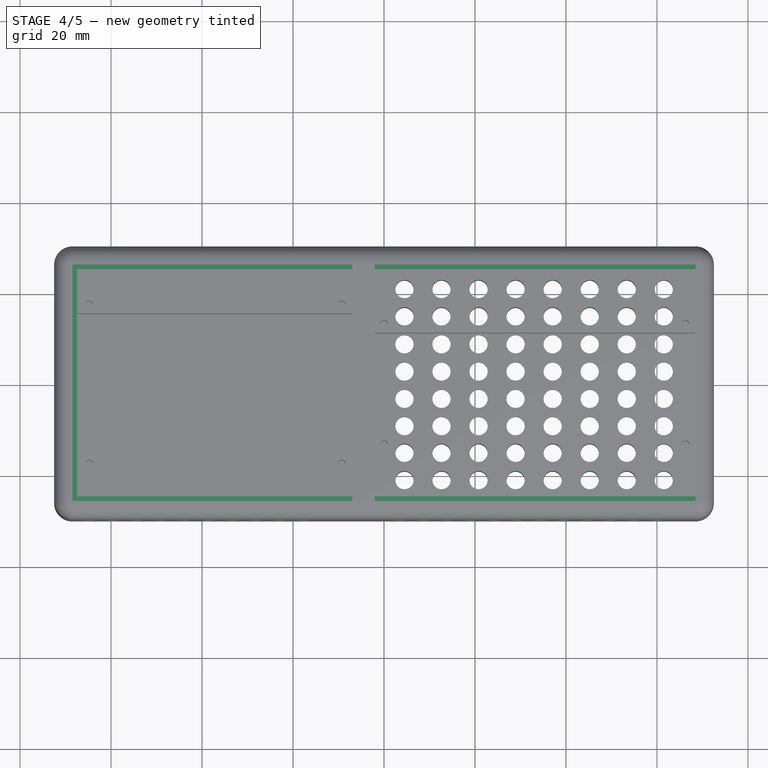
[diagram: stage 4 of 5 — top view after this stage's code; geometry added in this stage tinted green]
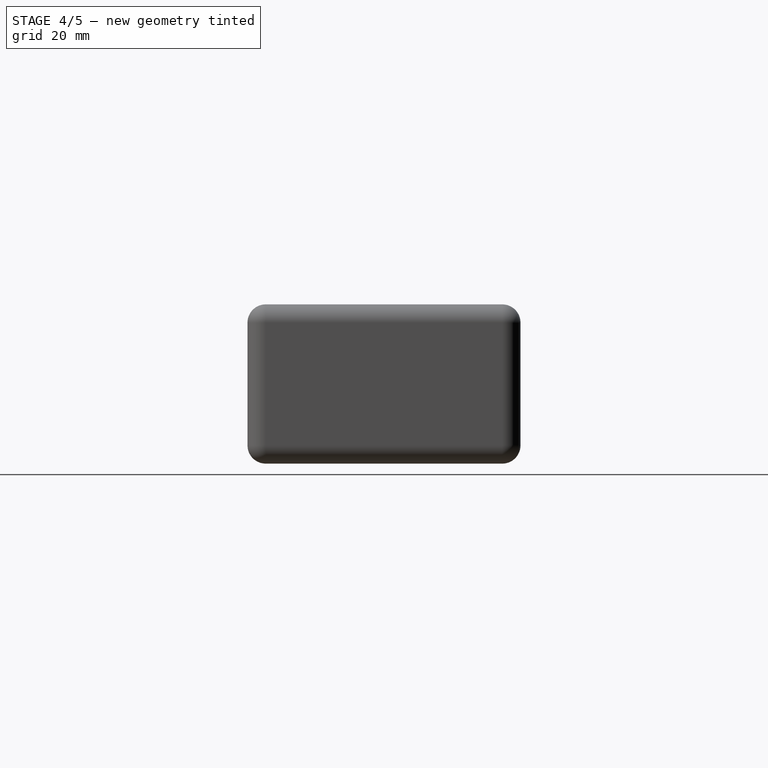
[diagram: stage 4 of 5 — right view after this stage's code; geometry added in this stage tinted green]
FEATURE [PartDesign::LinearPattern] LinearPattern003
  BaseFeature = -> Pocket006
  Direction = -> Sketch008 [H_Axis]
  Length = 57
  Occurrences = 8
  Originals = -> [Pocket006]
  Reversed = true
FEATURE [Sketcher::SketchObject] Sketch009
  ExternalGeometry = -> [LinearPattern003]
  FullyConstrained = true
  MapMode = 5
  Placement = pos=(0,-26,0) rot=(0,0.707107,0.707107;3.14159rad)
  Support = -> [LinearPattern003]
  sketch-geometry (8):
    g0: LineSegment StartX=7 StartY=35 StartZ=0 EndX=68.5 EndY=35 EndZ=0
    g1: LineSegment StartX=68.5 StartY=35 StartZ=0 EndX=68.5 EndY=33 EndZ=0
    g2: LineSegment StartX=68.5 StartY=33 StartZ=0 EndX=7 EndY=33 EndZ=0
    g3: LineSegment StartX=7 StartY=33 StartZ=0 EndX=7 EndY=35 EndZ=0
    g4: LineSegment StartX=2 StartY=35 StartZ=0 EndX=-68.5 EndY=35 EndZ=0
    g5: LineSegment StartX=-68.5 StartY=35 StartZ=0 EndX=-68.5 EndY=33 EndZ=0
    g6: LineSegment StartX=-68.5 StartY=33 StartZ=0 EndX=2 EndY=33 EndZ=0
    g7: LineSegment StartX=2 StartY=33 StartZ=0 EndX=2 EndY=35 EndZ=0
  constraints (22):
    c: Coincident(g0,g1)
    c: Coincident(g1,g2)
    c: Coincident(g2,g3)
    c: Coincident(g3,g0)
    c: Horizontal(g0)
    c: Horizontal(g2)
    c: Vertical(g1)
    c: Vertical(g3)
    c: Coincident(g0,g-5)
    c: PointOnObject(g1,g-6)
    c: Distance(g1) = 2
    c: Coincident(g4,g5)
    c: Coincident(g5,g6)
    c: Coincident(g6,g7)
    c: Coincident(g7,g4)
    c: Horizontal(g4)
    c: Horizontal(g6)
    c: Vertical(g5)
    c: Vertical(g7)
    c: Coincident(g4,g-5)
    c: PointOnObject(g5,g-7)
    c: Distance(g5) = 2
FEATURE [PartDesign::Pad] Pad002
  BaseFeature = -> LinearPattern003
  Direction = (0,1,-2e-16)
  Length = 1
  Length2 = 10
  Profile = -> Sketch009
  ReferenceAxis = -> Sketch009 [N_Axis]
  Type = 0
FEATURE [Sketcher::SketchObject] Sketch010
  ExternalGeometry = -> [Pad002]
  FullyConstrained = true
  MapMode = 5
  Placement = pos=(0,26,0) rot=(1,0,0;1.5708rad)
  Support = -> [Pad002]
  sketch-geometry (8):
    g0: LineSegment StartX=-68.5 StartY=35 StartZ=0 EndX=-7 EndY=35 EndZ=0
    g1: LineSegment StartX=-7 StartY=35 StartZ=0 EndX=-7 EndY=33 EndZ=0
    g2: LineSegment StartX=-7 StartY=33 StartZ=0 EndX=-68.5 EndY=33 EndZ=0
    g3: LineSegment StartX=-68.5 StartY=33 StartZ=0 EndX=-68.5 EndY=35 EndZ=0
    g4: LineSegment StartX=68.5 StartY=35 StartZ=0 EndX=-2 EndY=35 EndZ=0
    g5: LineSegment StartX=-2 StartY=35 StartZ=0 EndX=-2 EndY=33 EndZ=0
    g6: LineSegment StartX=-2 StartY=33 StartZ=0 EndX=68.5 EndY=33 EndZ=0
    g7: LineSegment StartX=68.5 StartY=33 StartZ=0 EndX=68.5 EndY=35 EndZ=0
  constraints (22):
    c: Coincident(g0,g1)
    c: Coincident(g1,g2)
    c: Coincident(g2,g3)
    c: Coincident(g3,g0)
    c: Horizontal(g0)
    c: Horizontal(g2)
    c: Vertical(g1)
    c: Vertical(g3)
    c: Coincident(g0,g-4)
    c: PointOnObject(g1,g-5)
    c: Distance(g1) = 2
    c: Coincident(g4,g5)
    c: Coincident(g5,g6)
    c: Coincident(g6,g7)
    c: Coincident(g7,g4)
    c: Horizontal(g4)
    c: Horizontal(g6)
    c: Vertical(g5)
    c: Vertical(g7)
    c: Coincident(g4,g-8)
    c: PointOnObject(g5,g-6)
    c: Distance(g5) = 2
FEATURE [PartDesign::Pad] Pad003
  BaseFeature = -> Pad002
  Direction = (0,-1,2e-16)
  Length = 1
  Length2 = 10
  Profile = -> Sketch010
  ReferenceAxis = -> Sketch010 [N_Axis]
  Type = 0
FEATURE [Sketcher::SketchObject] Sketch011
  ExternalGeometry = -> [Pad003]
  FullyConstrained = true
  MapMode = 5
  Placement = pos=(-72.5,0,0) rot=(0.57735,-0.57735,-0.57735;2.0944rad)
  Support = -> [Pad003]
  sketch-geometry (8):
    g0: LineSegment StartX=-25 StartY=35 StartZ=0 EndX=-25 EndY=12.5 EndZ=0
    g1: LineSegment StartX=25 StartY=35 StartZ=0 EndX=25 EndY=12.5 EndZ=0
    g2: LineSegment StartX=-25 StartY=12.5 StartZ=0 EndX=-9.5 EndY=12.5 EndZ=0
    g3: LineSegment StartX=25 StartY=22.5 StartZ=0 EndX=5 EndY=22.5 EndZ=0
    g4: LineSegment StartX=-9.5 StartY=12.5 StartZ=0 EndX=5 EndY=12.5 EndZ=0
    g5: LineSegment StartX=5 StartY=12.5 StartZ=0 EndX=5 EndY=22.5 EndZ=0
    g6: LineSegment StartX=5 StartY=22.5 StartZ=0 EndX=-9.5 EndY=22.5 EndZ=0
    g7: LineSegment StartX=-9.5 StartY=22.5 StartZ=0 EndX=-9.5 EndY=12.5 EndZ=0
  constraints (23):
    c: Coincident(g0,g-8)
    c: Vertical(g0)
    c: Distance(g0) = 22.5
    c: Coincident(g1,g-9)
    c: Vertical(g1)
    c: Equal(g1,g0)
    c: Coincident(g2,g0)
    c: Horizontal(g2)
    c: PointOnObject(g3,g1)
    c: Horizontal(g3)
    c: Coincident(g4,g5)
    c: Coincident(g5,g6)
    c: Coincident(g6,g7)
    c: Coincident(g7,g4)
    c: Horizontal(g4)
    c: Horizontal(g6)
    c: Vertical(g5)
    c: Vertical(g7)
    c: Coincident(g4,g2)
    c: Coincident(g5,g3)
    c: Distance(g5) = 10
    c: Distance(g6) = 14.5
    c: Distance(g2) = 15.5
FEATURE [PartDesign::Pocket] Pocket007
  BaseFeature = -> Pad003
  Direction = (1,0,0)
  Length = 5
  Length2 = 5
  Profile = -> Sketch011
  ReferenceAxis = -> Sketch011 [N_Axis]
  Type = 0
FEATURE [Sketcher::SketchObject] Sketch012
  FullyConstrained = true
  MapMode = 5
  Placement = pos=(0,7.7e-15,35) rot=(0,0,1;0rad)
  Support = -> [Pocket007]
FEATURE [Sketcher::SketchObject] Sketch013
  ExternalGeometry = -> [Pocket007]
  FullyConstrained = true
  MapMode = 5
  Placement = pos=(-68.5,0,0) rot=(0.57735,0.57735,0.57735;2.0944rad)
  Support = -> [Pocket007]
  sketch-geometry (4):
    g0: LineSegment StartX=-25 StartY=35 StartZ=0 EndX=25 EndY=35 EndZ=0
    g1: LineSegment StartX=25 StartY=35 StartZ=0 EndX=25 EndY=33 EndZ=0
    g2: LineSegment StartX=25 StartY=33 StartZ=0 EndX=-25 EndY=33 EndZ=0
    g3: LineSegment StartX=-25 StartY=33 StartZ=0 EndX=-25 EndY=35 EndZ=0
  constraints (10):
    c: Coincident(g0,g1)
    c: Coincident(g1,g2)
    c: Coincident(g2,g3)
    c: Coincident(g3,g0)
    c: Horizontal(g0)
    c: Horizontal(g2)
    c: Vertical(g1)
    c: Vertical(g3)
    c: Coincident(g0,g-3)
    c: Coincident(g1,g-4)
FEATURE [PartDesign::Pad] Pad004
  BaseFeature = -> Pocket007
  Direction = (1,0,0)
  Length = 1
  Length2 = 10
  Profile = -> Sketch013
  ReferenceAxis = -> Sketch013 [N_Axis]
  Type = 0
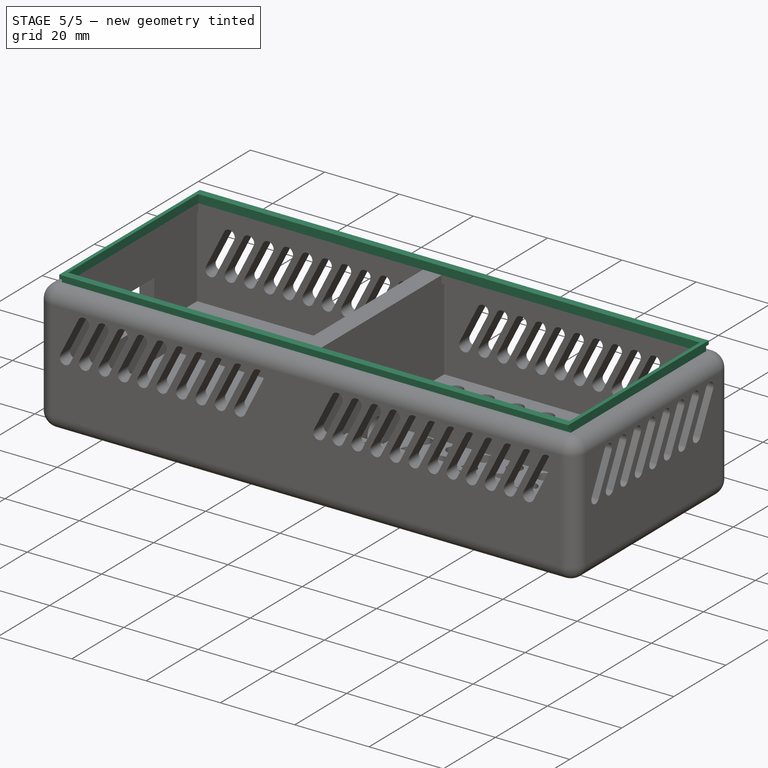
[diagram: stage 5 of 5 — iso view after this stage's code; geometry added in this stage tinted green]
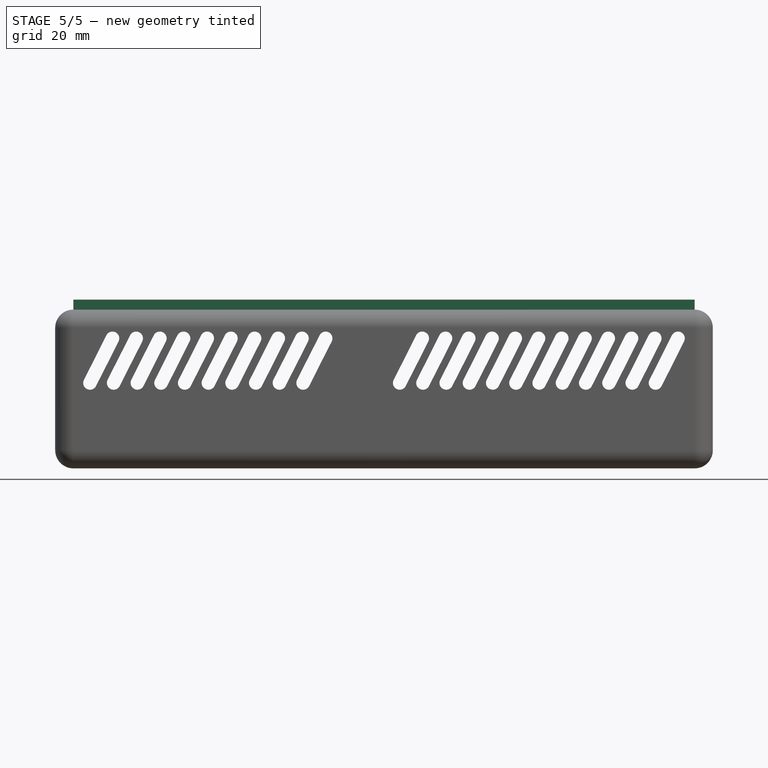
[diagram: stage 5 of 5 — front view after this stage's code; geometry added in this stage tinted green]
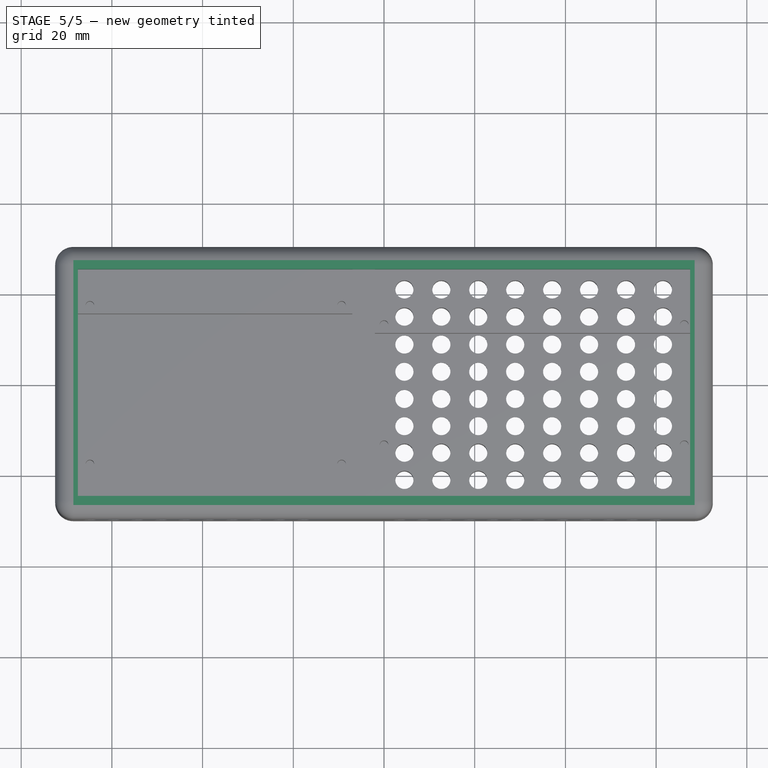
[diagram: stage 5 of 5 — top view after this stage's code; geometry added in this stage tinted green]
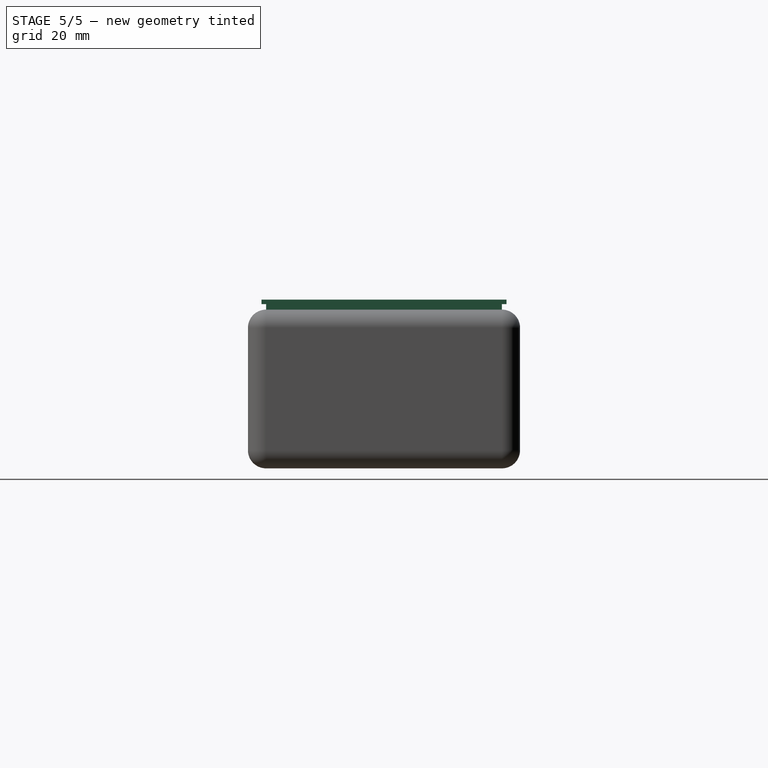
[diagram: stage 5 of 5 — right view after this stage's code; geometry added in this stage tinted green]
FEATURE [Sketcher::SketchObject] Sketch014
  ExternalGeometry = -> [Pad004]
  FullyConstrained = true
  MapMode = 5
  Placement = pos=(68.5,0,0) rot=(0.57735,-0.57735,-0.57735;2.0944rad)
  Support = -> [Pad004]
  sketch-geometry (4):
    g0: LineSegment StartX=25 StartY=35 StartZ=0 EndX=-25 EndY=35 EndZ=0
    g1: LineSegment StartX=-25 StartY=35 StartZ=0 EndX=-25 EndY=33 EndZ=0
    g2: LineSegment StartX=-25 StartY=33 StartZ=0 EndX=25 EndY=33 EndZ=0
    g3: LineSegment StartX=25 StartY=33 StartZ=0 EndX=25 EndY=35 EndZ=0
  constraints (10):
    c: Coincident(g0,g1)
    c: Coincident(g1,g2)
    c: Coincident(g2,g3)
    c: Coincident(g3,g0)
    c: Horizontal(g0)
    c: Horizontal(g2)
    c: Vertical(g1)
    c: Vertical(g3)
    c: Coincident(g0,g-3)
    c: Coincident(g1,g-4)
FEATURE [PartDesign::Pad] Pad005
  BaseFeature = -> Pad004
  Direction = (-1,0,0)
  Length = 1
  Length2 = 10
  Profile = -> Sketch014
  ReferenceAxis = -> Sketch014 [N_Axis]
  Type = 0
FEATURE [Sketcher::SketchObject] Sketch015
  ExternalGeometry = -> [Pad005]
  FullyConstrained = true
  MapMode = 5
  Placement = pos=(0,0,35) rot=(0,0,1;0rad)
  Support = -> [Pad005]
  sketch-geometry (8):
    g0: LineSegment StartX=-67.5 StartY=25 StartZ=0 EndX=67.5 EndY=25 EndZ=0
    g1: LineSegment StartX=67.5 StartY=25 StartZ=0 EndX=67.5 EndY=-25 EndZ=0
    g2: LineSegment StartX=67.5 StartY=-25 StartZ=0 EndX=-67.5 EndY=-25 EndZ=0
    g3: LineSegment StartX=-67.5 StartY=-25 StartZ=0 EndX=-67.5 EndY=25 EndZ=0
    g4: LineSegment StartX=68.5 StartY=-26 StartZ=0 EndX=-68.5 EndY=-26 EndZ=0
    g5: LineSegment StartX=-68.5 StartY=-26 StartZ=0 EndX=-68.5 EndY=26 EndZ=0
    g6: LineSegment StartX=-68.5 StartY=26 StartZ=0 EndX=68.5 EndY=26 EndZ=0
    g7: LineSegment StartX=68.5 StartY=26 StartZ=0 EndX=68.5 EndY=-26 EndZ=0
  constraints (20):
    c: Coincident(g0,g1)
    c: Coincident(g1,g2)
    c: Coincident(g2,g3)
    c: Coincident(g3,g0)
    c: Horizontal(g0)
    c: Horizontal(g2)
    c: Vertical(g1)
    c: Vertical(g3)
    c: Coincident(g0,g-14)
    c: Coincident(g1,g-17)
    c: Coincident(g4,g5)
    c: Coincident(g5,g6)
    c: Coincident(g6,g7)
    c: Coincident(g7,g4)
    c: Horizontal(g4)
    c: Horizontal(g6)
    c: Vertical(g5)
    c: Vertical(g7)
    c: Coincident(g4,g-8)
    c: Coincident(g5,g-3)
FEATURE [PartDesign::Pad] Pad006
  BaseFeature = -> Pad005
  Direction = (0,0,1)
  Length = 2.2
  Length2 = 10
  Profile = -> Sketch015
  ReferenceAxis = -> Sketch015 [N_Axis]
  Type = 0
FEATURE [Sketcher::SketchObject] Sketch016
  ExternalGeometry = -> [Pad006]
  FullyConstrained = true
  MapMode = 5
  Placement = pos=(0,26,0) rot=(0,0.707107,0.707107;3.14159rad)
  Support = -> [Pad006]
  sketch-geometry (5):
    g0: LineSegment StartX=68.5 StartY=37.2 StartZ=0 EndX=68.5 EndY=36.2 EndZ=0
    g1: LineSegment StartX=-68.5 StartY=37.2 StartZ=0 EndX=68.5 EndY=37.2 EndZ=0
    g2: LineSegment StartX=68.5 StartY=37.2 StartZ=0 EndX=68.5 EndY=36.2 EndZ=0
    g3: LineSegment StartX=68.5 StartY=36.2 StartZ=0 EndX=-68.5 EndY=36.2 EndZ=0
    g4: LineSegment StartX=-68.5 StartY=36.2 StartZ=0 EndX=-68.5 EndY=37.2 EndZ=0
  constraints (13):
    c: Coincident(g0,g-3)
    c: Vertical(g0)
    c: Distance(g0) = 1
    c: Coincident(g1,g2)
    c: Coincident(g2,g3)
    c: Coincident(g3,g4)
    c: Coincident(g4,g1)
    c: Horizontal(g1)
    c: Horizontal(g3)
    c: Vertical(g2)
    c: Vertical(g4)
    c: Coincident(g1,g-4)
    c: Coincident(g2,g0)
FEATURE [PartDesign::Pad] Pad007
  BaseFeature = -> Pad006
  Direction = (0,1,-2e-16)
  Length = 1
  Length2 = 10
  Profile = -> Sketch016
  ReferenceAxis = -> Sketch016 [N_Axis]
  Type = 0
FEATURE [Sketcher::SketchObject] Sketch017
  ExternalGeometry = -> [Pad007]
  FullyConstrained = true
  MapMode = 5
  Placement = pos=(0,-26,0) rot=(1,0,0;1.5708rad)
  Support = -> [Pad007]
  sketch-geometry (5):
    g0: LineSegment StartX=-68.5 StartY=37.2 StartZ=0 EndX=-68.5 EndY=36.2 EndZ=0
    g1: LineSegment StartX=-68.5 StartY=36.2 StartZ=0 EndX=68.5 EndY=36.2 EndZ=0
    g2: LineSegment StartX=68.5 StartY=36.2 StartZ=0 EndX=68.5 EndY=37.2 EndZ=0
    g3: LineSegment StartX=68.5 StartY=37.2 StartZ=0 EndX=-68.5 EndY=37.2 EndZ=0
    g4: LineSegment StartX=-68.5 StartY=37.2 StartZ=0 EndX=-68.5 EndY=36.2 EndZ=0
  constraints (13):
    c: Coincident(g0,g-3)
    c: Distance(g0) = 1
    c: Vertical(g0)
    c: Coincident(g1,g2)
    c: Coincident(g2,g3)
    c: Coincident(g3,g4)
    c: Coincident(g4,g1)
    c: Horizontal(g1)
    c: Horizontal(g3)
    c: Vertical(g2)
    c: Vertical(g4)
    c: Coincident(g1,g0)
    c: Coincident(g2,g-3)
FEATURE [PartDesign::Pad] Pad008
  BaseFeature = -> Pad007
  Direction = (0,-1,2e-16)
  Length = 1
  Length2 = 10
  Profile = -> Sketch017
  ReferenceAxis = -> Sketch017 [N_Axis]
  Type = 0
FEATURE [PartDesign::Body] Body
  Group = -> [Sketch,Pad,Fillet,Sketch001,Pocket,Sketch002,Pocket001,Sketch003,Pad001,Sketch004,Pocket002,Sketch005,Pocket003,LinearPattern,Sketch006,Pocket004,LinearPattern001,Sketch007,Pocket005,LinearPattern002,Sketch008,Pocket006,LinearPattern003,Sketch009,Pad002,Sketch010,Pad003,Sketch011,Pocket007,Sketch012,Sketch013,Pad004,Sketch014,Pad005,Sketch015,Pad006,Sketch016,Pad007,Sketch017,Pad008]
  Origin = -> Origin
  Tip = -> Pad008
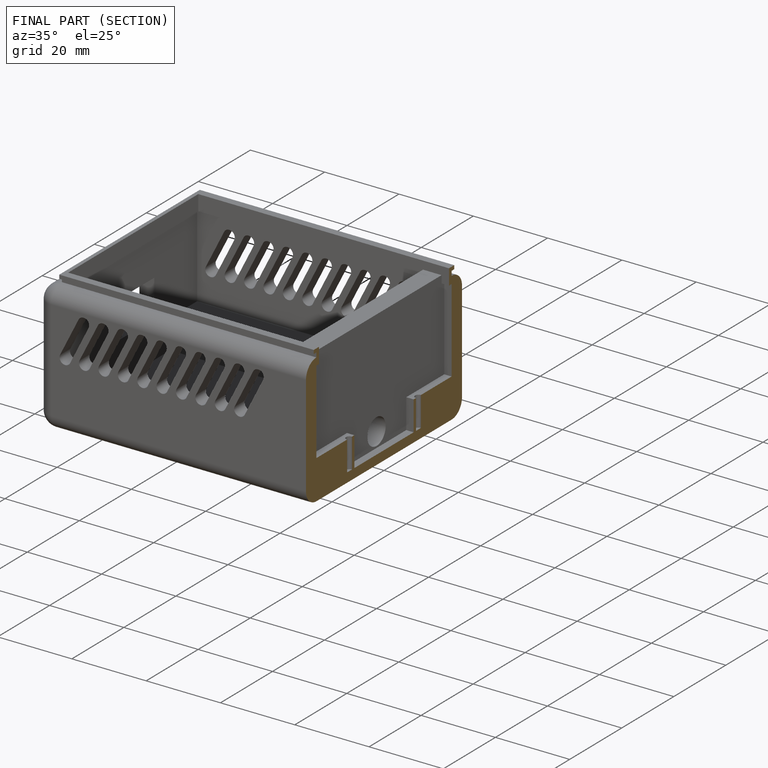
[diagram: finished part — half-section view (interior)]
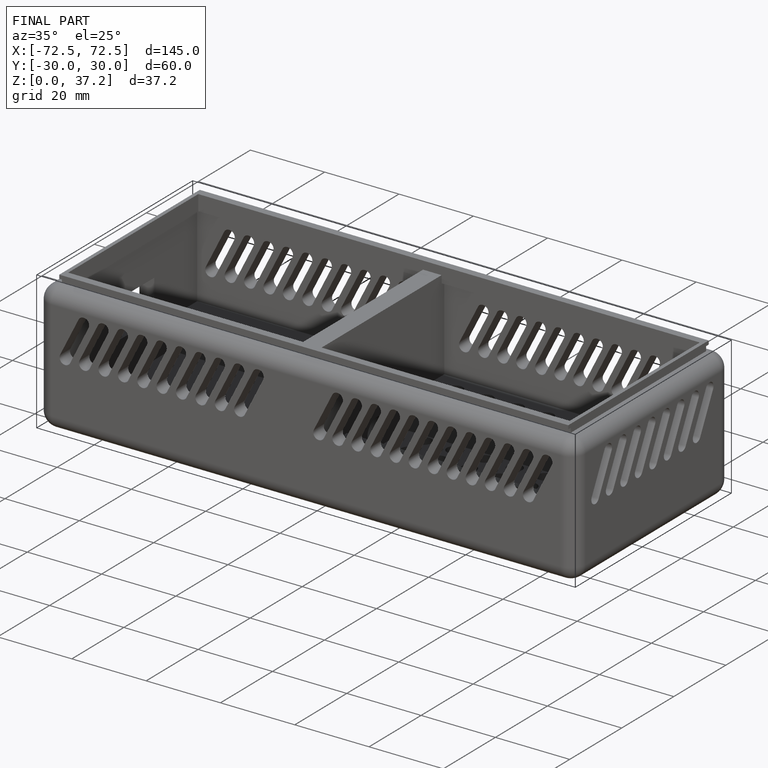
[diagram: finished part — iso view with bounding-box wireframe]
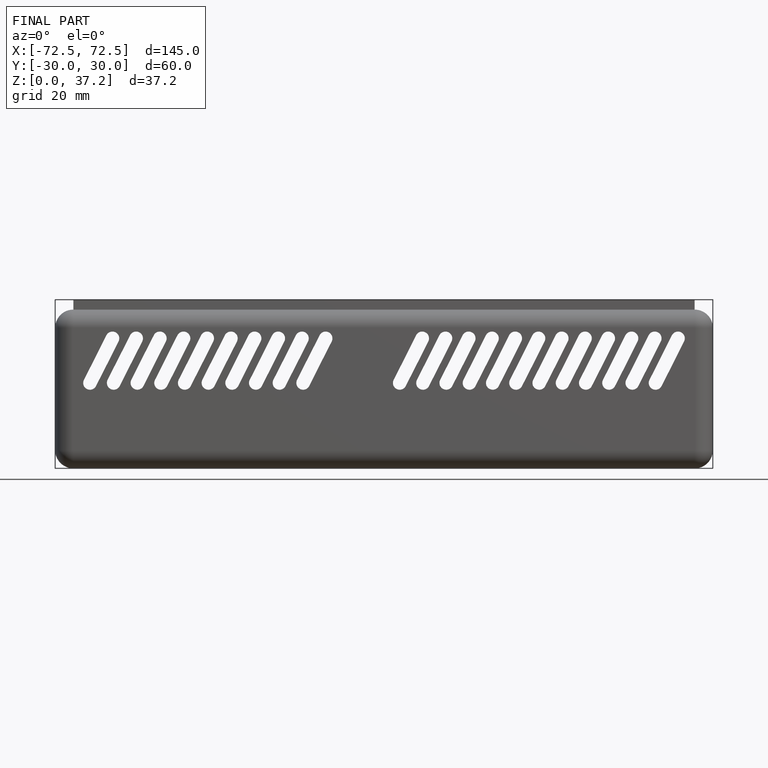
[diagram: finished part — front view with bounding-box wireframe]
